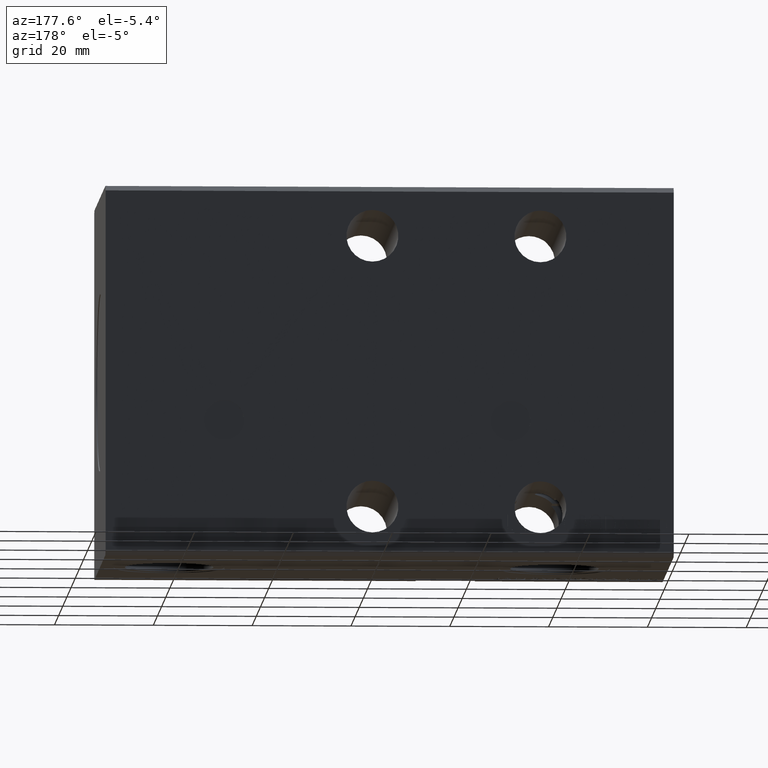
[diagram: clean part render]
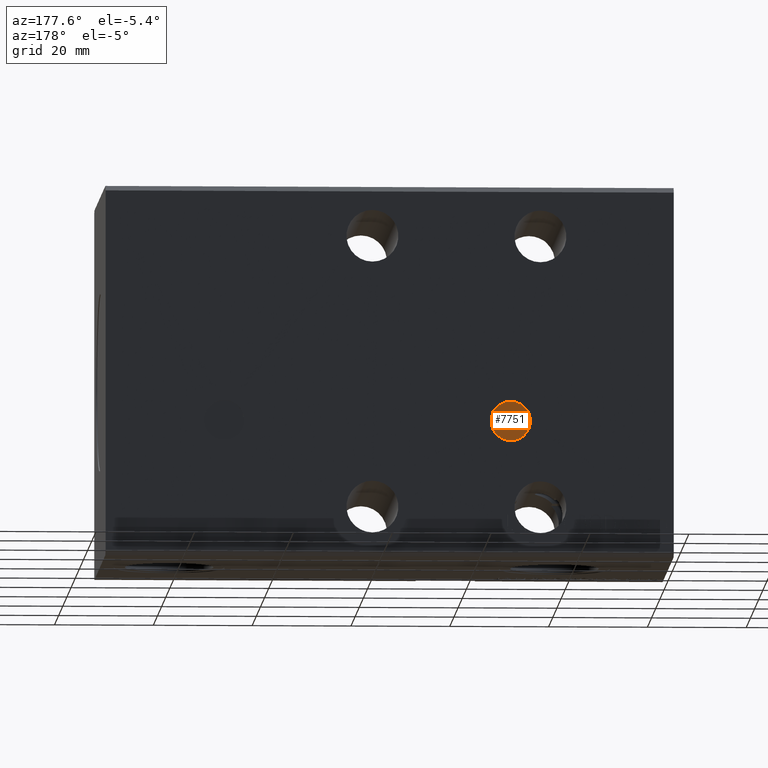
[diagram: same view with one face highlighted and labeled with its STEP entity id]
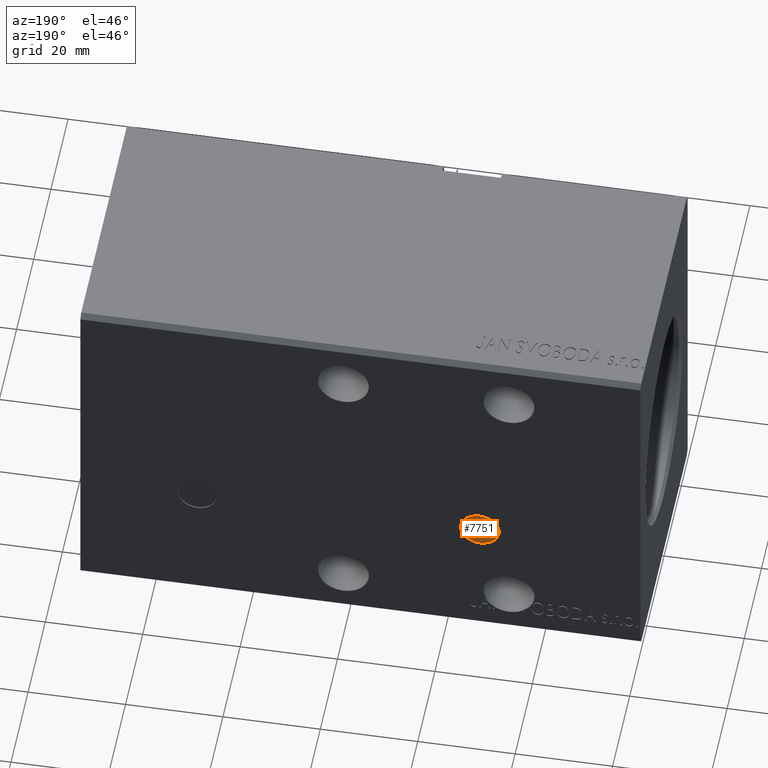
[diagram: same view with one face highlighted and labeled with its STEP entity id]
A machine part, auxiliary view. The second image highlights one B-rep face of the part: STEP entity #7751.
A second angle (auxiliary view) of the same face is appended — the face is thin or edge-on in the first view.
In plain terms, the highlighted planar face has unit normal (0, 1, 0).
Its self-contained STEP definition (entity closure, byte-faithful):
#2671 = DIRECTION ( 'NONE',  ( 0.000000000000000000, -0.000000000000000000, 1.000000000000000000 ) ) ;
#5514 = VERTEX_POINT ( 'NONE', #28941 ) ;
#7040 = EDGE_CURVE ( 'NONE', #27310, #5514, #35862, .T. ) ;
#7252 = CARTESIAN_POINT ( 'NONE',  ( 33.00000000000000000, 27.30000000000000782, -9.999999999999989342 ) ) ;
#7751 = ADVANCED_FACE ( 'NONE', ( #17855 ), #38952, .T. ) ;
#9588 = CARTESIAN_POINT ( 'NONE',  ( 33.00000000000000000, 27.30000000000000782, -9.999999999999989342 ) ) ;
#10063 = DIRECTION ( 'NONE',  ( 0.000000000000000000, 1.000000000000000000, 0.000000000000000000 ) ) ;
#10633 = EDGE_LOOP ( 'NONE', ( #31551, #38902 ) ) ;
#16430 = DIRECTION ( 'NONE',  ( 0.000000000000000000, 0.000000000000000000, 1.000000000000000000 ) ) ;
#17855 = FACE_OUTER_BOUND ( 'NONE', #10633, .T. ) ;
#18120 = AXIS2_PLACEMENT_3D ( 'NONE', #23834, #29994, #2671 ) ;
#23834 = CARTESIAN_POINT ( 'NONE',  ( 33.00000000000000000, 27.30000000000000782, -9.999999999999989342 ) ) ;
#27310 = VERTEX_POINT ( 'NONE', #32718 ) ;
#27927 = DIRECTION ( 'NONE',  ( 0.000000000000000000, 0.000000000000000000, 1.000000000000000000 ) ) ;
#28473 = AXIS2_PLACEMENT_3D ( 'NONE', #9588, #31106, #27927 ) ;
#28941 = CARTESIAN_POINT ( 'NONE',  ( 33.00000000000000000, 27.30000000000000782, -5.999999999999990230 ) ) ;
#29064 = EDGE_CURVE ( 'NONE', #5514, #27310, #35423, .T. ) ;
#29994 = DIRECTION ( 'NONE',  ( 0.000000000000000000, 1.000000000000000000, 0.000000000000000000 ) ) ;
#31106 = DIRECTION ( 'NONE',  ( 0.000000000000000000, 1.000000000000000000, 0.000000000000000000 ) ) ;
#31551 = ORIENTED_EDGE ( 'NONE', *, *, #29064, .T. ) ;
#32718 = CARTESIAN_POINT ( 'NONE',  ( 33.00000000000000000, 27.30000000000000782, -13.99999999999998757 ) ) ;
#33311 = AXIS2_PLACEMENT_3D ( 'NONE', #7252, #10063, #16430 ) ;
#35423 = CIRCLE ( 'NONE', #28473, 3.999999999999999112 ) ;
#35862 = CIRCLE ( 'NONE', #33311, 3.999999999999999112 ) ;
#38902 = ORIENTED_EDGE ( 'NONE', *, *, #7040, .T. ) ;
#38952 = PLANE ( 'NONE',  #18120 ) ;